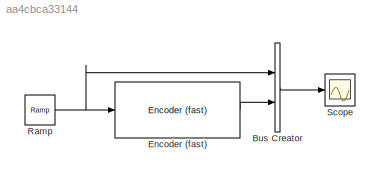
MODEL slx_aa4cbca33144
KIND model
BLOCK [BusCreator] Bus Creator
  DisplayOption = bar
  Inputs = 2
  Ports = [2, 1]
BLOCK [Reference] Encoder (fast)  REF=Encoder/Encoder (fast)
  Nr = 30
  Ports = [1, 1]
  SourceBlock = Encoder/Encoder (fast)
  SourceType = Encoder de quadratura (fast)
BLOCK [Reference] Ramp  REF=simulink/Sources/Ramp
  Ports = [0, 1]
  SourceBlock = simulink/Sources/Ramp
  SourceType = Ramp
  VectorParams1D = on
  X0 = 0
  slope = 720
  start = 0
BLOCK [Scope] Scope
  DataFormat = StructureWithTime
  Floating = off
  NumInputPorts = 1
  Ports = [1]
  SampleTime = 0
  ShowLegends = off
LINE Bus Creator:1 -> Scope:1
LINE Encoder (fast):1 -> Bus Creator:2
NET Ramp:1 -> Bus Creator:1, Encoder (fast):1
note: NET lines group one-source signal fan-out (src -> all destinations, sorted); 1:1 wires keep LINE
